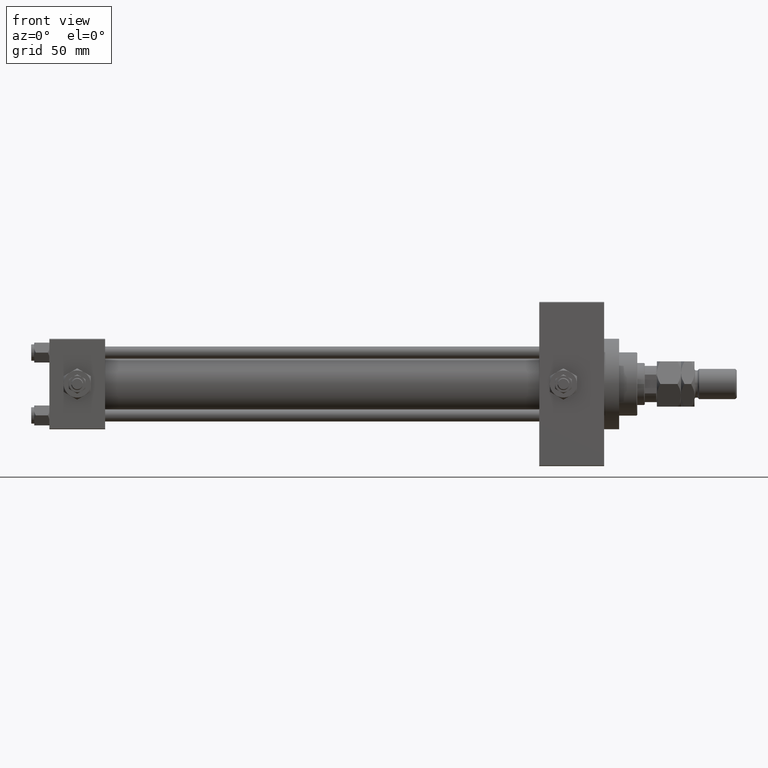
[diagram: clean part render]
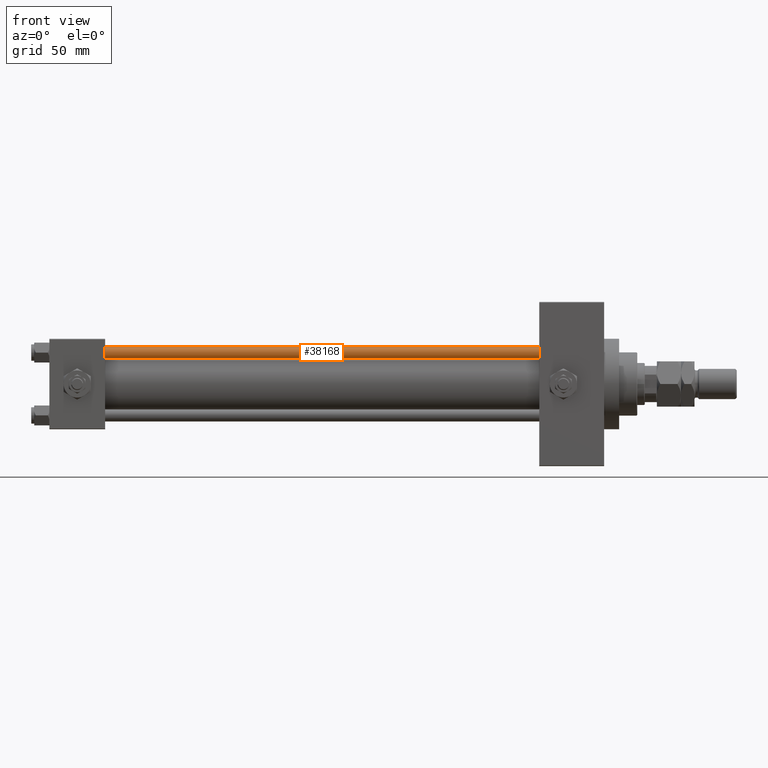
[diagram: same view with one face highlighted and labeled with its STEP entity id]
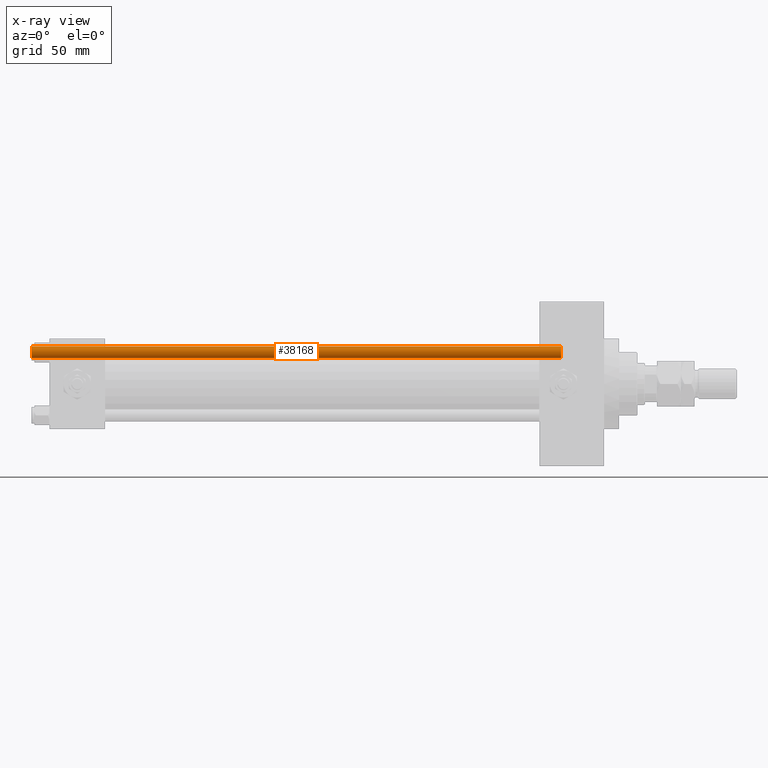
[diagram: x-ray of the same camera — body ghosted, the highlighted face saturated]
A machine part, front view. The second image highlights one B-rep face of the part: STEP entity #38168.
The next image is the same camera in x-ray: the body ghosted, the highlighted face saturated — about 0% of this face is hidden behind the body in this view.
In plain terms, the highlighted cylindrical surface (edge-blend (fillet) strip) has radius 4 mm, axis along (1, 0, 0).
Its self-contained STEP definition (entity closure, byte-faithful):
#497 = CARTESIAN_POINT ( 'NONE',  ( 0.000000000000000000, 0.000000000000000000, 352.0000000000000000 ) ) ;
#5205 = EDGE_LOOP ( 'NONE', ( #47299, #7964, #43752, #37477 ) ) ;
#5517 = DIRECTION ( 'NONE',  ( 1.000000000000000000, 0.000000000000000000, 0.000000000000000000 ) ) ;
#6041 = CARTESIAN_POINT ( 'NONE',  ( -4.000000000000000000, 0.000000000000000000, 0.5000000000000004441 ) ) ;
#7825 = CARTESIAN_POINT ( 'NONE',  ( 4.000000000000000000, 4.898587196589412829E-16, 0.5000000000000004441 ) ) ;
#7964 = ORIENTED_EDGE ( 'NONE', *, *, #26612, .T. ) ;
#8889 = EDGE_CURVE ( 'NONE', #19945, #45612, #46003, .T. ) ;
#9806 = DIRECTION ( 'NONE',  ( -0.000000000000000000, -0.000000000000000000, -1.000000000000000000 ) ) ;
#11294 = EDGE_CURVE ( 'NONE', #16237, #45612, #21893, .T. ) ;
#11356 = DIRECTION ( 'NONE',  ( -0.000000000000000000, -0.000000000000000000, 1.000000000000000000 ) ) ;
#11800 = AXIS2_PLACEMENT_3D ( 'NONE', #497, #16190, #31869 ) ;
#15886 = LINE ( 'NONE', #43410, #25463 ) ;
#16190 = DIRECTION ( 'NONE',  ( -0.000000000000000000, -0.000000000000000000, -1.000000000000000000 ) ) ;
#16237 = VERTEX_POINT ( 'NONE', #38001 ) ;
#17432 = CARTESIAN_POINT ( 'NONE',  ( 4.000000000000000000, 4.898587196589412829E-16, 351.5000000000000000 ) ) ;
#18242 = VERTEX_POINT ( 'NONE', #17432 ) ;
#19945 = VERTEX_POINT ( 'NONE', #7825 ) ;
#20039 = CYLINDRICAL_SURFACE ( 'NONE', #11800, 4.000000000000000000 ) ;
#21893 = LINE ( 'NONE', #30114, #31106 ) ;
#25338 = DIRECTION ( 'NONE',  ( 0.000000000000000000, 0.000000000000000000, -1.000000000000000000 ) ) ;
#25463 = VECTOR ( 'NONE', #39038, 1000.000000000000000 ) ;
#26612 = EDGE_CURVE ( 'NONE', #18242, #19945, #15886, .T. ) ;
#27053 = DIRECTION ( 'NONE',  ( 1.000000000000000000, 0.000000000000000000, 0.000000000000000000 ) ) ;
#30114 = CARTESIAN_POINT ( 'NONE',  ( -4.000000000000000000, 0.000000000000000000, 352.0000000000000000 ) ) ;
#31106 = VECTOR ( 'NONE', #9806, 1000.000000000000000 ) ;
#31764 = AXIS2_PLACEMENT_3D ( 'NONE', #33833, #25338, #5517 ) ;
#31869 = DIRECTION ( 'NONE',  ( -1.000000000000000000, 0.000000000000000000, 0.000000000000000000 ) ) ;
#33833 = CARTESIAN_POINT ( 'NONE',  ( 0.000000000000000000, 0.000000000000000000, 351.5000000000000000 ) ) ;
#34788 = CARTESIAN_POINT ( 'NONE',  ( 0.000000000000000000, 0.000000000000000000, 0.5000000000000004441 ) ) ;
#35885 = CIRCLE ( 'NONE', #31764, 4.000000000000000000 ) ;
#36151 = AXIS2_PLACEMENT_3D ( 'NONE', #34788, #11356, #27053 ) ;
#37477 = ORIENTED_EDGE ( 'NONE', *, *, #11294, .F. ) ;
#38001 = CARTESIAN_POINT ( 'NONE',  ( -4.000000000000000000, 0.000000000000000000, 351.5000000000000000 ) ) ;
#38168 = ADVANCED_FACE ( 'NONE', ( #47342 ), #20039, .T. ) ;
#39038 = DIRECTION ( 'NONE',  ( -0.000000000000000000, -0.000000000000000000, -1.000000000000000000 ) ) ;
#43410 = CARTESIAN_POINT ( 'NONE',  ( 4.000000000000000000, 4.898587196589412829E-16, 352.0000000000000000 ) ) ;
#43752 = ORIENTED_EDGE ( 'NONE', *, *, #8889, .T. ) ;
#44428 = EDGE_CURVE ( 'NONE', #16237, #18242, #35885, .T. ) ;
#45612 = VERTEX_POINT ( 'NONE', #6041 ) ;
#46003 = CIRCLE ( 'NONE', #36151, 4.000000000000000000 ) ;
#47299 = ORIENTED_EDGE ( 'NONE', *, *, #44428, .T. ) ;
#47342 = FACE_OUTER_BOUND ( 'NONE', #5205, .T. ) ;